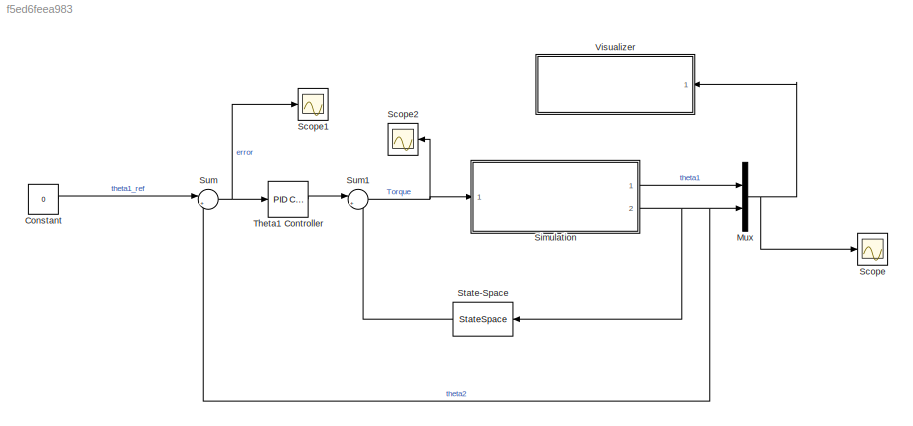
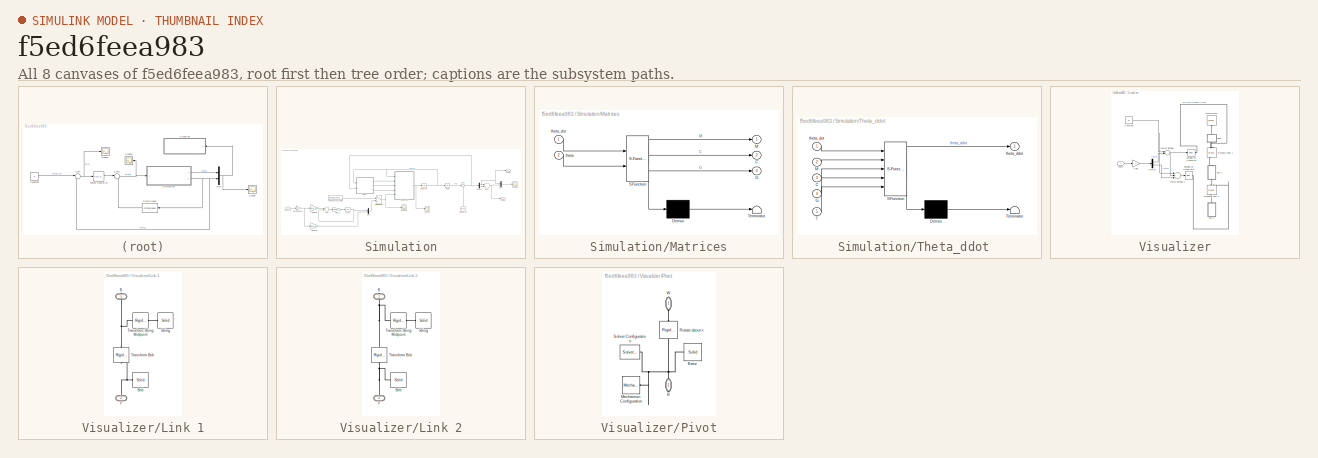
[diagram: thumbnail index - all 8 canvases of the model, root first then tree order]
MODEL slx_f5ed6feea983
KIND model
CONFIG AbsTol = auto
CONFIG EnableMultiTasking = on
CONFIG FixedStep = auto
CONFIG MaxStep = auto
CONFIG MinStep = auto
CONFIG RelTol = 1e-3
CONFIG SampleTimeConstraint = Unconstrained
CONFIG Solver = ode45
CONFIG SolverName = ode45
CONFIG StartFcn = par_struct
CONFIG StartTime = 0.0
CONFIG StopTime = sim_time
WORKSPACE source: external: MATLAB File  (data not in archive)
BLOCK [Constant] Constant
  Value = 0
BLOCK [Mux] Mux
  DisplayOption = bar
  Inputs = 2
  Ports = [2, 1]
BLOCK [Scope] Scope
  NumInputPorts = 1
  Ports = [1]
  ScopeSpecificationString = Simulink.scopes.TimeScopeBlockCfg('CurrentConfiguration', extmgr.ConfigurationSet(extmgr.Configuration('Core','General UI',true),extmgr.Configuration('Core','Source UI',true),extmgr.Configuration('Sources','WiredSimulink',true,'DataLoggingVariableName','ScopeData1'),extmgr.Configuration('Visuals','Time Domain',true,'SerializedDisplays',{struct('MinYLimReal','-1.1027','MaxYLimReal','3.04062','YLabe...<+1744ch>
BLOCK [Scope] Scope1
  NumInputPorts = 1
  Ports = [1]
  ScopeSpecificationString = Simulink.scopes.TimeScopeBlockCfg('CurrentConfiguration', extmgr.ConfigurationSet(extmgr.Configuration('Core','General UI',true),extmgr.Configuration('Core','Source UI',true),extmgr.Configuration('Sources','WiredSimulink',true,'DataLoggingVariableName','ScopeData1'),extmgr.Configuration('Visuals','Time Domain',true,'SerializedDisplays',{struct('MinYLimReal','-9.64883','MaxYLimReal','8.07498','YLab...<+1437ch>
BLOCK [Scope] Scope2
  NumInputPorts = 1
  Ports = [1]
  ScopeSpecificationString = Simulink.scopes.TimeScopeBlockCfg('CurrentConfiguration', extmgr.ConfigurationSet(extmgr.Configuration('Core','General UI',true),extmgr.Configuration('Core','Source UI',true),extmgr.Configuration('Sources','WiredSimulink',true,'DataLoggingVariableName','ScopeData1'),extmgr.Configuration('Visuals','Time Domain',true,'SerializedDisplays',{struct('MinYLimReal','-30924.8838','MaxYLimReal','225175.4912...<+1469ch>
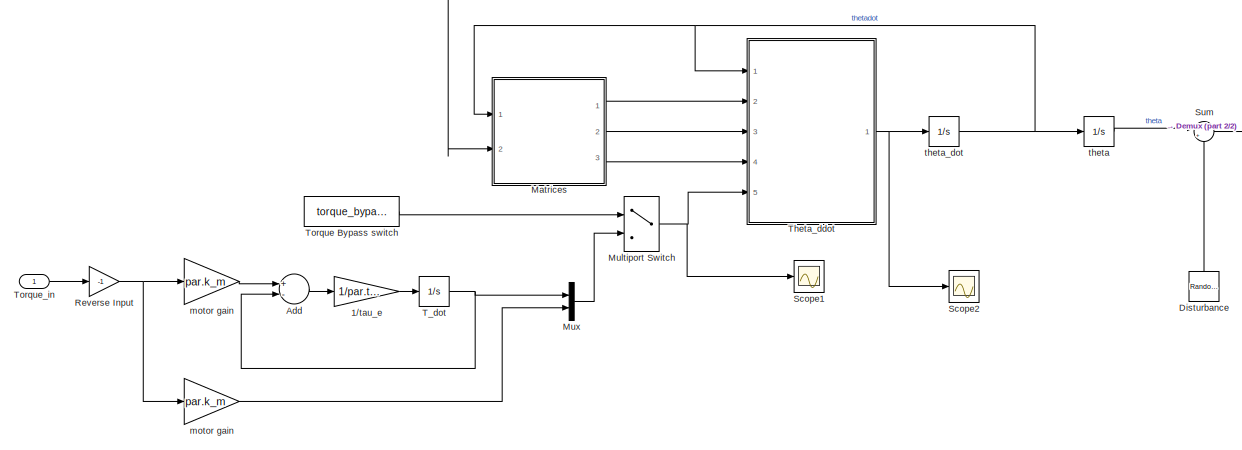
[diagram: Simulation - part 1/2, most of the canvas]
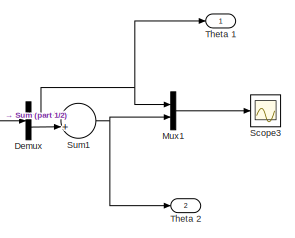
[diagram: Simulation - part 2/2, middle right region]
BLOCK [SubSystem] Simulation
  Ports = [1, 2]
  RequestExecContextInheritance = off
  Variant = off
BLOCK [Gain] Simulation/1//tau_e 
  Gain = 1/par.tau_e
  OutDataTypeStr = Inherit: Inherit via internal rule
  ParamDataTypeStr = Inherit: Inherit via internal rule
  SaturateOnIntegerOverflow = off
BLOCK [Sum] Simulation/Add
  InputSameDT = off
  Inputs = +-
  OutDataTypeStr = Inherit: Inherit via internal rule
  Ports = [2, 1]
  SaturateOnIntegerOverflow = off
BLOCK [Demux] Simulation/Demux
  DisplayOption = bar
  Outputs = 2
  Ports = [1, 2]
BLOCK [RandomNumber] Simulation/Disturbance
  Variance = 1e-5
BLOCK [SubSystem] Simulation/Matrices
  ErrorFcn = Stateflow.Translate.translate
  PermitHierarchicalResolution = ExplicitOnly
  Ports = [2, 3]
  RequestExecContextInheritance = off
  SFBlockType = MATLAB Function
  TreatAsAtomicUnit = on
  Variant = off
BLOCK [Demux] Simulation/Matrices/ Demux 
  Outputs = 1
  Ports = [1, 1]
BLOCK [S-Function] Simulation/Matrices/ SFunction 
  EnableBusSupport = on
  FunctionName = sf_sfun
  Parameters = par
  PortCounts = [2 4]
  Ports = [2, 4]
  SFcnIsStateOwnerBlock = off
  SFunctionDeploymentMode = off
  Tag = Stateflow S-Function linear_model 2
BLOCK [Terminator] Simulation/Matrices/ Terminator 
BLOCK [Outport] Simulation/Matrices/C
  IconDisplay = Port number
  Port = 2
BLOCK [Outport] Simulation/Matrices/G
  IconDisplay = Port number
  Port = 3
BLOCK [Outport] Simulation/Matrices/M
  IconDisplay = Port number
BLOCK [Inport] Simulation/Matrices/theta
  IconDisplay = Port number
  Port = 2
BLOCK [Inport] Simulation/Matrices/theta_dot
  IconDisplay = Port number
BLOCK [MultiPortSwitch] Simulation/Multiport Switch
  DataPortOrder = Zero-based contiguous
  InputSameDT = off
  Inputs = 1
  Ports = [2, 1]
  SaturateOnIntegerOverflow = off
BLOCK [Mux] Simulation/Mux
  DisplayOption = bar
  Inputs = 2
  Ports = [2, 1]
BLOCK [Mux] Simulation/Mux1
  DisplayOption = bar
  Inputs = 2
  Ports = [2, 1]
BLOCK [Gain] Simulation/Reverse Input
  Gain = -1
  OutDataTypeStr = Inherit: Inherit via internal rule
  ParamDataTypeStr = Inherit: Inherit via internal rule
  SaturateOnIntegerOverflow = off
BLOCK [Scope] Simulation/Scope1
  NumInputPorts = 1
  Ports = [1]
  ScopeSpecificationString = Simulink.scopes.TimeScopeBlockCfg('CurrentConfiguration', extmgr.ConfigurationSet(extmgr.Configuration('Core','General UI',true),extmgr.Configuration('Core','Source UI',true),extmgr.Configuration('Sources','WiredSimulink',true,'DataLoggingLimitDataPoints',true,'DataLoggingSaveFormat','Array','DataLoggingDecimation','1','DataLoggingDecimateData',true,'DataLoggingVariableName','ScopeData1'),extmgr.C...<+1789ch>
BLOCK [Scope] Simulation/Scope2
  NumInputPorts = 1
  Ports = [1]
  ScopeSpecificationString = Simulink.scopes.TimeScopeBlockCfg('CurrentConfiguration', extmgr.ConfigurationSet(extmgr.Configuration('Core','General UI',true),extmgr.Configuration('Core','Source UI',true),extmgr.Configuration('Sources','WiredSimulink',true,'DataLoggingVariableName','ScopeData1'),extmgr.Configuration('Visuals','Time Domain',true,'SerializedDisplays',{struct('MinYLimReal','-1.00000','MaxYLimReal','1.00000','YLab...<+1413ch>
BLOCK [Scope] Simulation/Scope3
  NumInputPorts = 1
  Ports = [1]
  ScopeSpecificationString = Simulink.scopes.TimeScopeBlockCfg('CurrentConfiguration', extmgr.ConfigurationSet(extmgr.Configuration('Core','General UI',true),extmgr.Configuration('Core','Source UI',true),extmgr.Configuration('Sources','WiredSimulink',true,'DataLoggingVariableName','ScopeData3'),extmgr.Configuration('Visuals','Time Domain',true,'SerializedDisplays',{struct('MinYLimReal','-0.46489','MaxYLimReal','5.77814','YLab...<+1446ch>
BLOCK [Sum] Simulation/Sum
  IconShape = round
  InputSameDT = off
  Inputs = |++
  OutDataTypeStr = Inherit: Inherit via internal rule
  Ports = [2, 1]
  SaturateOnIntegerOverflow = off
BLOCK [Sum] Simulation/Sum1
  InputSameDT = off
  OutDataTypeStr = Inherit: Inherit via internal rule
  Ports = [2, 1]
  SaturateOnIntegerOverflow = off
BLOCK [Integrator] Simulation/T_dot
  Ports = [1, 1]
BLOCK [Outport] Simulation/Theta 1
  IconDisplay = Port number
BLOCK [Outport] Simulation/Theta 2
  IconDisplay = Port number
  Port = 2
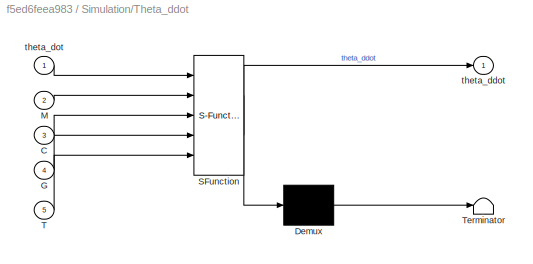
BLOCK [SubSystem] Simulation/Theta_ddot 
  ErrorFcn = Stateflow.Translate.translate
  PermitHierarchicalResolution = ExplicitOnly
  Ports = [5, 1]
  RequestExecContextInheritance = off
  SFBlockType = MATLAB Function
  TreatAsAtomicUnit = on
  Variant = off
BLOCK [Demux] Simulation/Theta_ddot / Demux 
  Outputs = 1
  Ports = [1, 1]
BLOCK [S-Function] Simulation/Theta_ddot / SFunction 
  EnableBusSupport = on
  FunctionName = sf_sfun
  PortCounts = [5 2]
  Ports = [5, 2]
  SFcnIsStateOwnerBlock = off
  SFunctionDeploymentMode = off
  Tag = Stateflow S-Function linear_model 1
BLOCK [Terminator] Simulation/Theta_ddot / Terminator 
BLOCK [Inport] Simulation/Theta_ddot /C
  IconDisplay = Port number
  Port = 3
BLOCK [Inport] Simulation/Theta_ddot /G
  IconDisplay = Port number
  Port = 4
BLOCK [Inport] Simulation/Theta_ddot /M
  IconDisplay = Port number
  Port = 2
BLOCK [Inport] Simulation/Theta_ddot /T
  IconDisplay = Port number
  Port = 5
BLOCK [Outport] Simulation/Theta_ddot /theta_ddot
  IconDisplay = Port number
BLOCK [Inport] Simulation/Theta_ddot /theta_dot
  IconDisplay = Port number
BLOCK [Constant] Simulation/Torque Bypass switch
  Value = torque_bypass
BLOCK [Inport] Simulation/Torque_in
  IconDisplay = Port number
BLOCK [Gain] Simulation/motor gain
  Gain = par.k_m
  OutDataTypeStr = Inherit: Inherit via internal rule
  ParamDataTypeStr = Inherit: Inherit via internal rule
  SaturateOnIntegerOverflow = off
BLOCK [Gain] Simulation/motor gain 
  Gain = par.k_m
  OutDataTypeStr = Inherit: Inherit via internal rule
  ParamDataTypeStr = Inherit: Inherit via internal rule
  SaturateOnIntegerOverflow = off
BLOCK [Integrator] Simulation/theta 
  InitialCondition = initial_state
  Ports = [1, 1]
BLOCK [Integrator] Simulation/theta_dot 
  Ports = [1, 1]
BLOCK [StateSpace] State-Space
  Ports = [1, 1]
  X0 = 0
BLOCK [Sum] Sum
  IconShape = round
  InputSameDT = off
  Inputs = |+-
  OutDataTypeStr = Inherit: Inherit via internal rule
  Ports = [2, 1]
  SaturateOnIntegerOverflow = off
BLOCK [Sum] Sum1
  IconShape = round
  InputSameDT = off
  Inputs = |++
  OutDataTypeStr = Inherit: Inherit via internal rule
  Ports = [2, 1]
  SaturateOnIntegerOverflow = off
BLOCK [Reference] Theta1 Controller  REF=simulink/Continuous/PID Controller
  Ports = [1, 1]
  SourceBlock = simulink/Continuous/PID Controller
  SourceType = PID 1dof
BLOCK [SubSystem] Visualizer
  Ports = [1]
  RequestExecContextInheritance = off
  Variant = off
BLOCK [Constant] Visualizer/Constant
  Value = pi
BLOCK [Demux] Visualizer/Demux
  DisplayOption = bar
  Outputs = 2
  Ports = [1, 2]
BLOCK [Gain] Visualizer/Gain
  Gain = -1
  OutDataTypeStr = Inherit: Inherit via internal rule
  ParamDataTypeStr = Inherit: Inherit via internal rule
  SaturateOnIntegerOverflow = off
BLOCK [SubSystem] Visualizer/Link 1
  Ports = [0, 0, 0, 0, 0, 1, 1]
  RequestExecContextInheritance = off
  Tag = CustomStyle
  Variant = off
BLOCK [PMIOPort] Visualizer/Link 1/B
  Port = 1
  Side = Right
BLOCK [Reference] Visualizer/Link 1/Bob  REF=sm_lib/Body Elements/Solid
  Ports = [0, 0, 0, 0, 0, 0, 1]
  SourceBlock = sm_lib/Body Elements/Solid
  SourceType = Solid
BLOCK [PMIOPort] Visualizer/Link 1/F
  Port = 2
  Side = Left
BLOCK [Reference] Visualizer/Link 1/String  REF=sm_lib/Body Elements/Solid
  Ports = [0, 0, 0, 0, 0, 0, 1]
  SourceBlock = sm_lib/Body Elements/Solid
  SourceType = Solid
BLOCK [Reference] Visualizer/Link 1/Transform Bob   REF=sm_lib/Frames and
Transforms/Rigid
Transform
  Ports = [0, 0, 0, 0, 0, 1, 1]
  SourceBlock = sm_lib/Frames and\nTransforms/Rigid\nTransform
  SourceType = Rigid\nTransform
BLOCK [Reference] Visualizer/Link 1/Transform String Midpoint  REF=sm_lib/Frames and
Transforms/Rigid
Transform
  Ports = [0, 0, 0, 0, 0, 1, 1]
  SourceBlock = sm_lib/Frames and\nTransforms/Rigid\nTransform
  SourceType = Rigid\nTransform
BLOCK [SubSystem] Visualizer/Link 2
  Ports = [0, 0, 0, 0, 0, 1, 1]
  RequestExecContextInheritance = off
  Tag = CustomStyle
  Variant = off
BLOCK [PMIOPort] Visualizer/Link 2/B
  Port = 1
  Side = Right
BLOCK [Reference] Visualizer/Link 2/Bob  REF=sm_lib/Body Elements/Solid
  Ports = [0, 0, 0, 0, 0, 0, 1]
  SourceBlock = sm_lib/Body Elements/Solid
  SourceType = Solid
BLOCK [PMIOPort] Visualizer/Link 2/F
  Port = 2
  Side = Left
BLOCK [Reference] Visualizer/Link 2/String  REF=sm_lib/Body Elements/Solid
  Ports = [0, 0, 0, 0, 0, 0, 1]
  SourceBlock = sm_lib/Body Elements/Solid
  SourceType = Solid
BLOCK [Reference] Visualizer/Link 2/Transform Bob   REF=sm_lib/Frames and
Transforms/Rigid
Transform
  Ports = [0, 0, 0, 0, 0, 1, 1]
  SourceBlock = sm_lib/Frames and\nTransforms/Rigid\nTransform
  SourceType = Rigid\nTransform
BLOCK [Reference] Visualizer/Link 2/Transform String Midpoint  REF=sm_lib/Frames and
Transforms/Rigid
Transform
  Ports = [0, 0, 0, 0, 0, 1, 1]
  SourceBlock = sm_lib/Frames and\nTransforms/Rigid\nTransform
  SourceType = Rigid\nTransform
BLOCK [SubSystem] Visualizer/Pivot
  Ports = [0, 0, 0, 0, 0, 1, 1]
  RequestExecContextInheritance = off
  Tag = CustomStyle
  Variant = off
BLOCK [PMIOPort] Visualizer/Pivot/B
  Port = 2
  Side = Right
BLOCK [Reference] Visualizer/Pivot/Base  REF=sm_lib/Body Elements/Solid
  Ports = [0, 0, 0, 0, 0, 0, 1]
  SourceBlock = sm_lib/Body Elements/Solid
  SourceType = Solid
BLOCK [Reference] Visualizer/Pivot/Mechanism Configuration  REF=sm_lib/Utilities/Mechanism
Configuration
  Ports = [0, 0, 0, 0, 0, 0, 1]
  SourceBlock = sm_lib/Utilities/Mechanism\nConfiguration
  SourceType = Mechanism\nConfiguration
BLOCK [Reference] Visualizer/Pivot/Rotate about x  REF=sm_lib/Frames and
Transforms/Rigid
Transform
  Ports = [0, 0, 0, 0, 0, 1, 1]
  SourceBlock = sm_lib/Frames and\nTransforms/Rigid\nTransform
  SourceType = Rigid\nTransform
BLOCK [Reference] Visualizer/Pivot/Solver Configuration  REF=nesl_utility/Solver
Configuration
  Ports = [0, 0, 0, 0, 0, 0, 1]
  SourceBlock = nesl_utility/Solver\nConfiguration
  SourceType = Solver\nConfiguration
BLOCK [PMIOPort] Visualizer/Pivot/W
  Port = 1
  Side = Left
BLOCK [Reference] Visualizer/Revolute Joint 1  REF=sm_lib/Joints/Revolute Joint
  Ports = [0, 0, 0, 0, 0, 2, 2]
  SourceBlock = sm_lib/Joints/Revolute Joint
  SourceType = Revolute Joint
BLOCK [Reference] Visualizer/Revolute Joint 2  REF=sm_lib/Joints/Revolute Joint
  Ports = [0, 0, 0, 0, 0, 2, 2]
  SourceBlock = sm_lib/Joints/Revolute Joint
  SourceType = Revolute Joint
BLOCK [Reference] Visualizer/Simulink-PS Converter  REF=nesl_utility/Simulink-PS
Converter
  Ports = [1, 0, 0, 0, 0, 0, 1]
  SourceBlock = nesl_utility/Simulink-PS\nConverter
  SourceType = Simulink-PS\nConverter
BLOCK [Reference] Visualizer/Simulink-PS Converter1  REF=nesl_utility/Simulink-PS
Converter
  Ports = [1, 0, 0, 0, 0, 0, 1]
  SourceBlock = nesl_utility/Simulink-PS\nConverter
  SourceType = Simulink-PS\nConverter
BLOCK [Inport] Visualizer/Theta
  IconDisplay = Port number
BLOCK [Reference] Visualizer/World Frame  REF=sm_lib/Frames and
Transforms/World Frame
  Ports = [0, 0, 0, 0, 0, 0, 1]
  SourceBlock = sm_lib/Frames and\nTransforms/World Frame
  SourceType = World Frame
BLOCK [Sum] Visualizer/theta2 Simulink 
  InputSameDT = off
  Inputs = -+
  OutDataTypeStr = Inherit: Inherit via internal rule
  Ports = [2, 1]
  SaturateOnIntegerOverflow = off
BLOCK [Sum] Visualizer/theta2 Simulink 1
  InputSameDT = off
  Inputs = --+
  OutDataTypeStr = Inherit: Inherit via internal rule
  Ports = [3, 1]
  SaturateOnIntegerOverflow = off
ANNOTATION Visualizer: Simscape Multibody Model
LINE Constant:1 -> Sum:1
NET Mux:1 -> Scope:1, Visualizer:1
LINE Simulation/1//tau_e :1 -> Simulation/T_dot:1
LINE Simulation/Add:1 -> Simulation/1//tau_e :1
NET Simulation/Demux:1 -> Simulation/Mux1:1, Simulation/Sum1:1, Simulation/Theta 1:1
LINE Simulation/Demux:2 -> Simulation/Sum1:2
LINE Simulation/Disturbance:1 -> Simulation/Sum:2
LINE Simulation/Matrices:1 -> Simulation/Theta_ddot :2
LINE Simulation/Matrices:2 -> Simulation/Theta_ddot :3
LINE Simulation/Matrices:3 -> Simulation/Theta_ddot :4
NET Simulation/Multiport Switch:1 -> Simulation/Scope1:1, Simulation/Theta_ddot :5
LINE Simulation/Mux1:1 -> Simulation/Scope3:1
LINE Simulation/Mux:1 -> Simulation/Multiport Switch:2
NET Simulation/Reverse Input:1 -> Simulation/motor gain :1, Simulation/motor gain:1
NET Simulation/Sum1:1 -> Simulation/Mux1:2, Simulation/Theta 2:1
NET Simulation/Sum:1 -> Simulation/Demux:1, Simulation/Matrices:2
NET Simulation/T_dot:1 -> Simulation/Add:2, Simulation/Mux:1
NET Simulation/Theta_ddot :1 -> Simulation/Scope2:1, Simulation/theta_dot :1
LINE Simulation/Torque Bypass switch:1 -> Simulation/Multiport Switch:1
LINE Simulation/Torque_in:1 -> Simulation/Reverse Input:1
LINE Simulation/motor gain :1 -> Simulation/Add:1
LINE Simulation/motor gain:1 -> Simulation/Mux:2
LINE Simulation/theta :1 -> Simulation/Sum:1
NET Simulation/theta_dot :1 -> Simulation/Matrices:1, Simulation/Theta_ddot :1, Simulation/theta :1
LINE Simulation:1 -> Mux:1
NET Simulation:2 -> Mux:2, State-Space:1, Sum:2
LINE State-Space:1 -> Sum1:2
NET Sum1:1 -> Scope2:1, Simulation:1
NET Sum:1 -> Scope1:1, Theta1 Controller:1
LINE Theta1 Controller:1 -> Sum1:1
NET Visualizer/Constant:1 -> Visualizer/theta2 Simulink 1:1, Visualizer/theta2 Simulink :1
LINE Visualizer/Demux:1 -> Visualizer/theta2 Simulink :2
LINE Visualizer/Demux:2 -> Visualizer/theta2 Simulink 1:3
LINE Visualizer/Gain:1 -> Visualizer/Demux:1
LINE Visualizer/Theta:1 -> Visualizer/Gain:1
LINE Visualizer/theta2 Simulink 1:1 -> Visualizer/Simulink-PS Converter1:1
NET Visualizer/theta2 Simulink :1 -> Visualizer/Simulink-PS Converter:1, Visualizer/theta2 Simulink 1:2
PNET net1: Visualizer/Link 1/B:RConn1 -- Visualizer/Link 1/Transform Bob :LConn1 -- Visualizer/Link 1/Transform String Midpoint:LConn1
PNET net2: Visualizer/Link 1/Bob:RConn1 -- Visualizer/Link 1/F:RConn1 -- Visualizer/Link 1/Transform Bob :RConn1
PLINE Visualizer/Link 1/String:RConn1 -- Visualizer/Link 1/Transform String Midpoint:RConn1
PLINE Visualizer/Link 1:LConn1 -- Visualizer/Revolute Joint 2:LConn1
PLINE Visualizer/Link 1:RConn1 -- Visualizer/Revolute Joint 1:RConn1
PNET net3: Visualizer/Link 2/B:RConn1 -- Visualizer/Link 2/Transform Bob :LConn1 -- Visualizer/Link 2/Transform String Midpoint:LConn1
PNET net4: Visualizer/Link 2/Bob:RConn1 -- Visualizer/Link 2/F:RConn1 -- Visualizer/Link 2/Transform Bob :RConn1
PLINE Visualizer/Link 2/String:RConn1 -- Visualizer/Link 2/Transform String Midpoint:RConn1
PLINE Visualizer/Link 2:RConn1 -- Visualizer/Revolute Joint 2:RConn1
PNET net5: Visualizer/Pivot/B:RConn1 -- Visualizer/Pivot/Base:RConn1 -- Visualizer/Pivot/Mechanism Configuration:RConn1 -- Visualizer/Pivot/Rotate about x:RConn1 -- Visualizer/Pivot/Solver Configuration:RConn1
PLINE Visualizer/Pivot/Rotate about x:LConn1 -- Visualizer/Pivot/W:RConn1
PLINE Visualizer/Pivot:LConn1 -- Visualizer/World Frame:RConn1
PLINE Visualizer/Pivot:RConn1 -- Visualizer/Revolute Joint 1:LConn1
PLINE Visualizer/Revolute Joint 1:LConn2 -- Visualizer/Simulink-PS Converter:RConn1
PLINE Visualizer/Revolute Joint 2:LConn2 -- Visualizer/Simulink-PS Converter1:RConn1
note: NET lines group one-source signal fan-out (src -> all destinations, sorted); 1:1 wires keep LINE; PNET lines group multi-terminal physical nets as a canonical sorted terminal list (undirected conserving connections); 2-terminal nets keep the pairwise PLINE form
CHART Simulation/Theta_ddot
 states=1 transitions=1
  STATE_LABEL 'eML_blk_kernel()'
  STATE_LABEL 'SCRIPT:\nfunction theta_ddot = fcn(theta_dot,M,C,G,T)\ntheta_ddot = [0;0];\n\ntheta_ddot = M\\[T;0] - M\\C*theta_dot - M\\G;\n'
CHART Simulation/Matrices states=1 transitions=1
  STATE_LABEL 'eML_blk_kernel()'
  STATE_LABEL 'SCRIPT:\n% function [M, C, G] = fcn(theta_dot, theta)\n% \n% M = zeros(2);\n% C = zeros(2);\n% G = [0;0];\n% \n% g = 9.81; \n% l1 = 0.1;\n% l2 = 0.1;\n% m1 = 0.125;\n% m2 = 0.05;\n% c1 = 0.04; % Keeping it negative results in no motion at all, -0.04 or + 0.04?\n% c2 = 0.06;\n% I1 = 0.074;\n% I2 = 0.00012;\n% b1 = 4.8;\n% b2 = 0.0002;\n% \n% P1 = m1*c1^2+m2*l1^2+I1;\n% P2 = m2*c2^2+ I2;\n% P3 = m2*l1*c2;\n% g1 = (m1*c1+...<+1071ch>'
